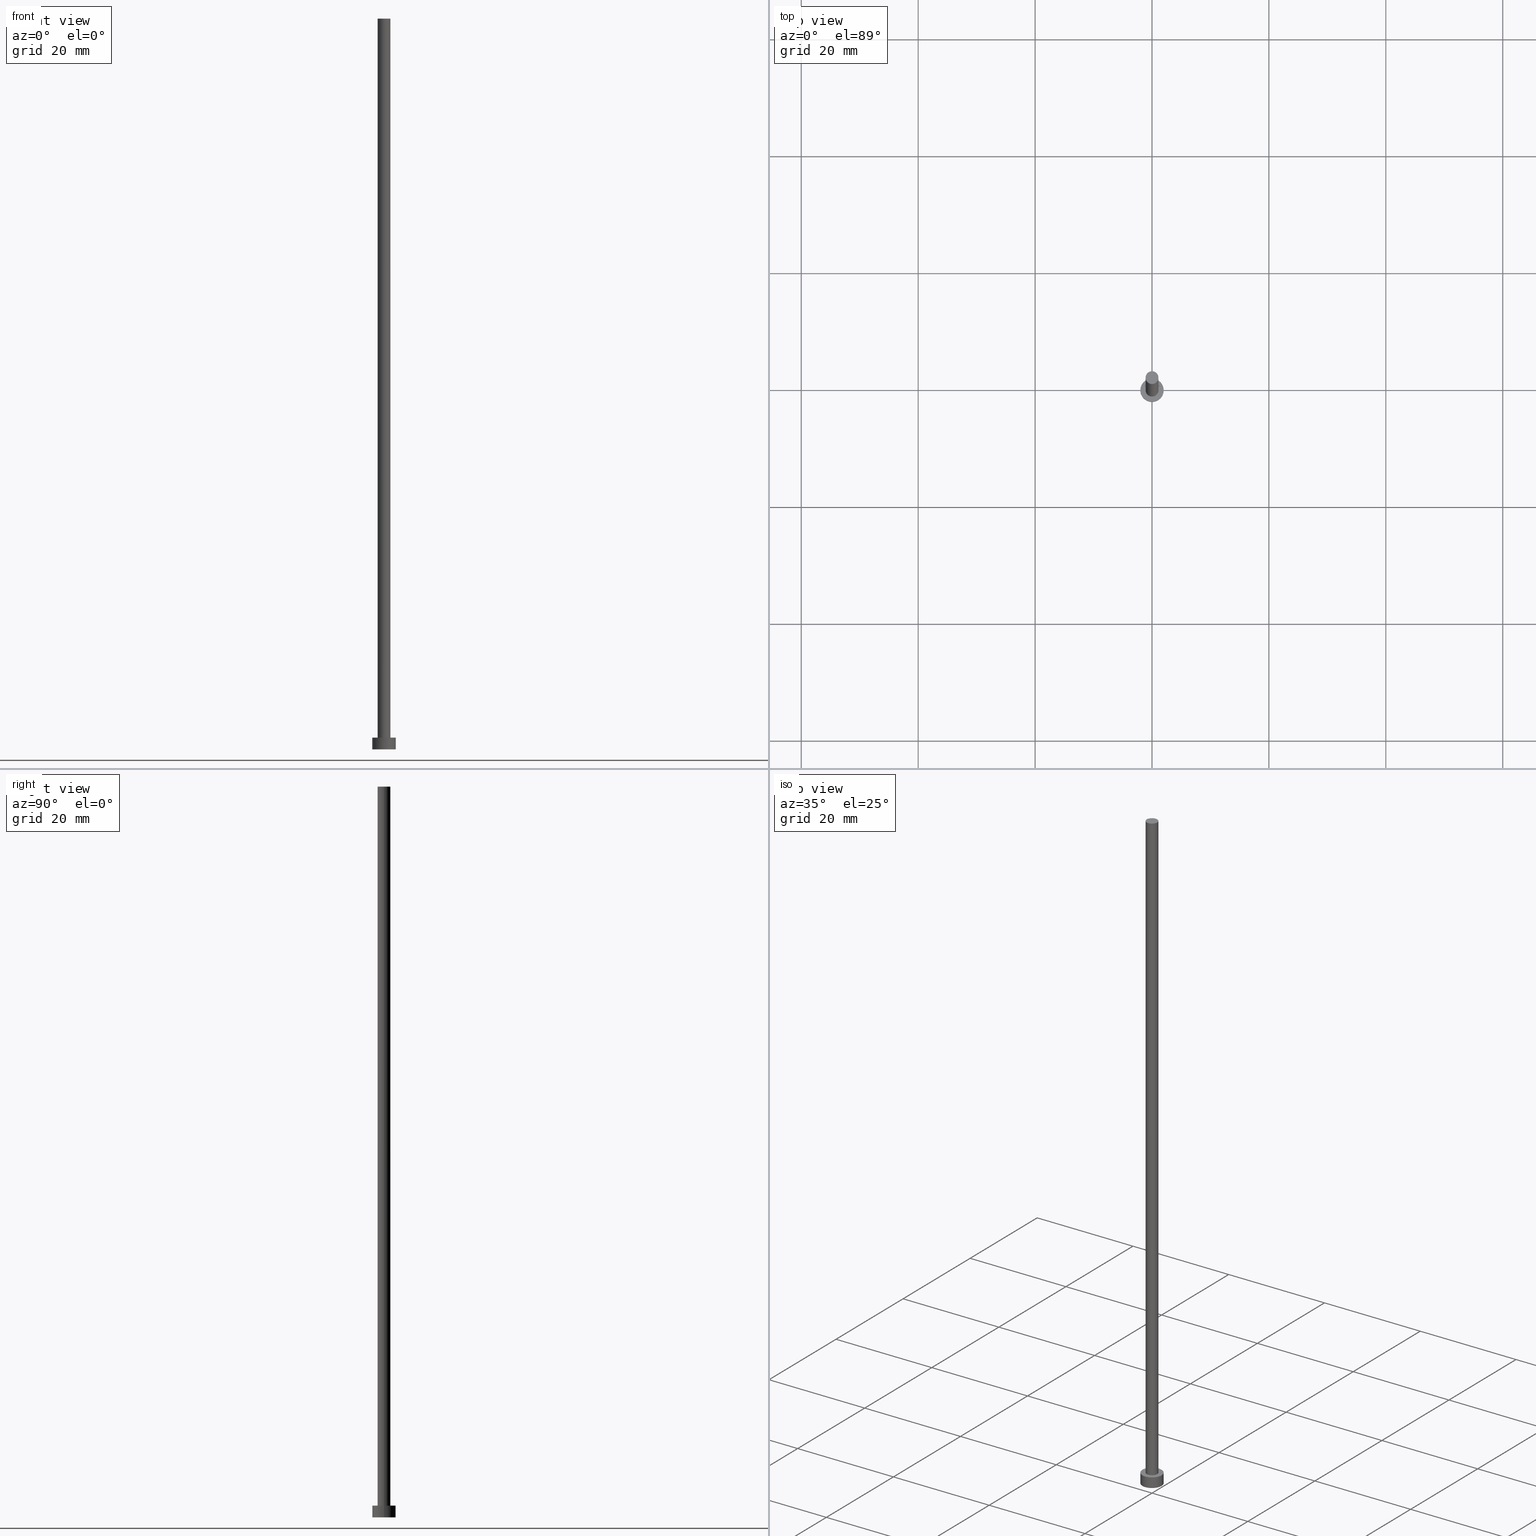
[diagram: canonical four-view strip — front | top / right | iso, engineering-drawing reading convention]
A machine part, canonical four-view strip (front | top / right | iso — engineering-drawing reading convention). The complete STEP part file that produces these views, byte-faithful:
ISO-10303-21;
HEADER;
FILE_DESCRIPTION (( 'STEP AP203' ),
    '1' );
FILE_NAME ('cc50.STEP',
    '2023-02-13T14:54:56',
    ( '' ),
    ( '' ),
    'SwSTEP 2.0',
    'SolidWorks 2019',
    '' );
FILE_SCHEMA (( 'CONFIG_CONTROL_DESIGN' ));
ENDSEC;

DATA;
#1 = DIRECTION ( 'NONE',  ( -0.000000000000000000, -0.000000000000000000, -1.000000000000000000 ) ) ;
#2 = DIRECTION ( 'NONE',  ( 0.000000000000000000, 0.000000000000000000, 1.000000000000000000 ) ) ;
#3 = DIRECTION ( 'NONE',  ( 0.000000000000000000, 0.000000000000000000, 1.000000000000000000 ) ) ;
#4 = ADVANCED_FACE ( 'NONE', ( #82 ), #80, .T. ) ;
#5 = DATE_AND_TIME ( #180, #24 ) ;
#6 = CARTESIAN_POINT ( 'NONE',  ( -2.000000000000000000, 0.000000000000000000, 0.000000000000000000 ) ) ;
#7 = EDGE_CURVE ( 'NONE', #54, #109, #189, .T. ) ;
#8 = AXIS2_PLACEMENT_3D ( 'NONE', #40, #63, #232 ) ;
#9 = APPLICATION_CONTEXT ( 'configuration controlled 3d designs of mechanical parts and assemblies' ) ;
#10 = ORIENTED_EDGE ( 'NONE', *, *, #123, .T. ) ;
#11 = DATE_AND_TIME ( #144, #200 ) ;
#12 = ORIENTED_EDGE ( 'NONE', *, *, #192, .F. ) ;
#13 = PERSON_AND_ORGANIZATION_ROLE ( 'classification_officer' ) ;
#14 = ORIENTED_EDGE ( 'NONE', *, *, #18, .F. ) ;
#15 = CC_DESIGN_SECURITY_CLASSIFICATION ( #204, ( #253 ) ) ;
#16 = ORIENTED_EDGE ( 'NONE', *, *, #44, .T. ) ;
#17 = FACE_OUTER_BOUND ( 'NONE', #112, .T. ) ;
#18 = EDGE_CURVE ( 'NONE', #209, #190, #95, .T. ) ;
#19 = CARTESIAN_POINT ( 'NONE',  ( 2.000000000000000000, 2.449293598294706414E-16, 2.000000000000000000 ) ) ;
#20 = CARTESIAN_POINT ( 'NONE',  ( -1.100000000000000089, 0.000000000000000000, 125.0000000000000000 ) ) ;
#21 = CARTESIAN_POINT ( 'NONE',  ( -2.000000000000000000, 0.000000000000000000, 2.000000000000000000 ) ) ;
#22 = DIRECTION ( 'NONE',  ( 1.000000000000000000, 0.000000000000000000, 0.000000000000000000 ) ) ;
#23 = PERSON_AND_ORGANIZATION ( #129, #225 ) ;
#24 = LOCAL_TIME ( 15, 54, 56.00000000000000000, #100 ) ;
#25 = APPROVAL_ROLE ( '' ) ;
#26 = DESIGN_CONTEXT ( 'detailed design', #9, 'design' ) ;
#27 = DIRECTION ( 'NONE',  ( 1.000000000000000000, 0.000000000000000000, -0.000000000000000000 ) ) ;
#28 =( NAMED_UNIT ( * ) SI_UNIT ( $, .STERADIAN. ) SOLID_ANGLE_UNIT ( ) );
#29 = PERSON_AND_ORGANIZATION ( #129, #225 ) ;
#30 = EDGE_CURVE ( 'NONE', #171, #136, #178, .T. ) ;
#31 = ORIENTED_EDGE ( 'NONE', *, *, #7, .F. ) ;
#32 = EDGE_LOOP ( 'NONE', ( #74, #89 ) ) ;
#33 = UNCERTAINTY_MEASURE_WITH_UNIT (LENGTH_MEASURE( 1.000000000000000082E-05 ), #147, 'distance_accuracy_value', 'NONE');
#34 = ORIENTED_EDGE ( 'NONE', *, *, #30, .T. ) ;
#35 = EDGE_CURVE ( 'NONE', #58, #252, #233, .T. ) ;
#36 = ORIENTED_EDGE ( 'NONE', *, *, #30, .F. ) ;
#37 = ORIENTED_EDGE ( 'NONE', *, *, #117, .F. ) ;
#38 = CC_DESIGN_APPROVAL ( #84, ( #253 ) ) ;
#39 = CC_DESIGN_PERSON_AND_ORGANIZATION_ASSIGNMENT ( #23, #126, ( #231 ) ) ;
#40 = CARTESIAN_POINT ( 'NONE',  ( 0.000000000000000000, 0.000000000000000000, 125.0000000000000000 ) ) ;
#41 = CARTESIAN_POINT ( 'NONE',  ( 0.000000000000000000, 0.000000000000000000, 2.000000000000000000 ) ) ;
#42 = DIRECTION ( 'NONE',  ( 0.000000000000000000, 0.000000000000000000, 1.000000000000000000 ) ) ;
#43 = DIRECTION ( 'NONE',  ( 1.000000000000000000, 0.000000000000000000, 0.000000000000000000 ) ) ;
#44 = EDGE_CURVE ( 'NONE', #252, #58, #220, .T. ) ;
#45 = DIRECTION ( 'NONE',  ( 1.000000000000000000, 0.000000000000000000, 0.000000000000000000 ) ) ;
#46 = DATE_AND_TIME ( #47, #64 ) ;
#47 = CALENDAR_DATE ( 2023, 13, 2 ) ;
#48 = AXIS2_PLACEMENT_3D ( 'NONE', #246, #50, #164 ) ;
#49 = APPLICATION_PROTOCOL_DEFINITION ( 'international standard', 'config_control_design', 1994, #223 ) ;
#50 = DIRECTION ( 'NONE',  ( -0.000000000000000000, -0.000000000000000000, -1.000000000000000000 ) ) ;
#51 = CARTESIAN_POINT ( 'NONE',  ( 0.000000000000000000, 0.000000000000000000, 2.000000000000000000 ) ) ;
#52 = APPROVAL_PERSON_ORGANIZATION ( #102, #212, #242 ) ;
#53 = PERSON_AND_ORGANIZATION_ROLE ( 'design_supplier' ) ;
#54 = VERTEX_POINT ( 'NONE', #193 ) ;
#55 = VECTOR ( 'NONE', #1, 1000.000000000000000 ) ;
#56 = ORIENTED_EDGE ( 'NONE', *, *, #163, .F. ) ;
#57 = CIRCLE ( 'NONE', #217, 2.000000000000000000 ) ;
#58 = VERTEX_POINT ( 'NONE', #60 ) ;
#59 = LINE ( 'NONE', #20, #55 ) ;
#60 = CARTESIAN_POINT ( 'NONE',  ( 2.000000000000000000, 2.449293598294706414E-16, 0.000000000000000000 ) ) ;
#61 = DIRECTION ( 'NONE',  ( 0.000000000000000000, 0.000000000000000000, 1.000000000000000000 ) ) ;
#62 = CARTESIAN_POINT ( 'NONE',  ( 1.100000000000000089, 1.347111479062088503E-16, 125.0000000000000000 ) ) ;
#63 = DIRECTION ( 'NONE',  ( -0.000000000000000000, -0.000000000000000000, -1.000000000000000000 ) ) ;
#64 = LOCAL_TIME ( 15, 54, 56.00000000000000000, #182 ) ;
#65 = FACE_OUTER_BOUND ( 'NONE', #153, .T. ) ;
#66 = APPROVAL_STATUS ( 'not_yet_approved' ) ;
#67 =( GEOMETRIC_REPRESENTATION_CONTEXT ( 3 ) GLOBAL_UNCERTAINTY_ASSIGNED_CONTEXT ( ( #33 ) ) GLOBAL_UNIT_ASSIGNED_CONTEXT ( ( #147, #243, #28 ) ) REPRESENTATION_CONTEXT ( 'NONE', 'WORKASPACE' ) );
#68 = DIRECTION ( 'NONE',  ( 0.000000000000000000, 0.000000000000000000, 1.000000000000000000 ) ) ;
#69 = ADVANCED_FACE ( 'NONE', ( #121 ), #93, .T. ) ;
#70 = ORIENTED_EDGE ( 'NONE', *, *, #79, .T. ) ;
#71 = EDGE_CURVE ( 'NONE', #209, #54, #59, .T. ) ;
#72 = COORDINATED_UNIVERSAL_TIME_OFFSET ( 1, 0, .AHEAD. ) ;
#73 = DATE_TIME_ROLE ( 'classification_date' ) ;
#74 = ORIENTED_EDGE ( 'NONE', *, *, #44, .F. ) ;
#75 = EDGE_CURVE ( 'NONE', #190, #209, #194, .T. ) ;
#76 = CARTESIAN_POINT ( 'NONE',  ( 0.000000000000000000, 0.000000000000000000, 2.000000000000000000 ) ) ;
#77 = AXIS2_PLACEMENT_3D ( 'NONE', #87, #167, #128 ) ;
#78 = DIRECTION ( 'NONE',  ( 1.000000000000000000, 0.000000000000000000, 0.000000000000000000 ) ) ;
#79 = EDGE_CURVE ( 'NONE', #109, #54, #86, .T. ) ;
#80 = CYLINDRICAL_SURFACE ( 'NONE', #8, 1.100000000000000089 ) ;
#81 = MANIFOLD_SOLID_BREP ( 'P�idat vysunut�m3', #151 ) ;
#82 = FACE_OUTER_BOUND ( 'NONE', #211, .T. ) ;
#83 = DIRECTION ( 'NONE',  ( 1.000000000000000000, 0.000000000000000000, -0.000000000000000000 ) ) ;
#84 = APPROVAL ( #66, 'NEUR�EN�' ) ;
#85 = PERSON_AND_ORGANIZATION ( #129, #225 ) ;
#86 = CIRCLE ( 'NONE', #226, 1.100000000000000089 ) ;
#87 = CARTESIAN_POINT ( 'NONE',  ( 0.000000000000000000, 0.000000000000000000, 2.000000000000000000 ) ) ;
#88 = CC_DESIGN_DATE_AND_TIME_ASSIGNMENT ( #5, #201, ( #231 ) ) ;
#89 = ORIENTED_EDGE ( 'NONE', *, *, #35, .F. ) ;
#90 = PERSON_AND_ORGANIZATION ( #129, #225 ) ;
#91 = ORIENTED_EDGE ( 'NONE', *, *, #163, .T. ) ;
#92 = ORIENTED_EDGE ( 'NONE', *, *, #192, .T. ) ;
#93 = PLANE ( 'NONE',  #165 ) ;
#94 = CARTESIAN_POINT ( 'NONE',  ( 0.000000000000000000, 0.000000000000000000, 125.0000000000000000 ) ) ;
#95 = CIRCLE ( 'NONE', #148, 1.100000000000000089 ) ;
#96 = CARTESIAN_POINT ( 'NONE',  ( 0.000000000000000000, 0.000000000000000000, 2.000000000000000000 ) ) ;
#97 = FACE_OUTER_BOUND ( 'NONE', #32, .T. ) ;
#98 = DIRECTION ( 'NONE',  ( 0.000000000000000000, 0.000000000000000000, 1.000000000000000000 ) ) ;
#99 = CC_DESIGN_APPROVAL ( #155, ( #204 ) ) ;
#100 = COORDINATED_UNIVERSAL_TIME_OFFSET ( 1, 0, .AHEAD. ) ;
#101 = COORDINATED_UNIVERSAL_TIME_OFFSET ( 1, 0, .AHEAD. ) ;
#102 = PERSON_AND_ORGANIZATION ( #129, #225 ) ;
#103 = AXIS2_PLACEMENT_3D ( 'NONE', #94, #42, #142 ) ;
#104 = DIRECTION ( 'NONE',  ( 0.000000000000000000, 0.000000000000000000, 1.000000000000000000 ) ) ;
#105 = PERSON_AND_ORGANIZATION_ROLE ( 'design_owner' ) ;
#106 = PRODUCT ( 'cc50', 'cc50', '', ( #224 ) ) ;
#107 = PRODUCT_RELATED_PRODUCT_CATEGORY ( 'detail', '', ( #106 ) ) ;
#108 = PERSON_AND_ORGANIZATION ( #129, #225 ) ;
#109 = VERTEX_POINT ( 'NONE', #122 ) ;
#110 = APPROVAL_PERSON_ORGANIZATION ( #85, #84, #25 ) ;
#111 = DATE_AND_TIME ( #251, #244 ) ;
#112 = EDGE_LOOP ( 'NONE', ( #36, #91, #177, #184 ) ) ;
#113 = ORIENTED_EDGE ( 'NONE', *, *, #71, .F. ) ;
#114 = VECTOR ( 'NONE', #115, 1000.000000000000000 ) ;
#115 = DIRECTION ( 'NONE',  ( -0.000000000000000000, -0.000000000000000000, -1.000000000000000000 ) ) ;
#116 = CARTESIAN_POINT ( 'NONE',  ( 2.000000000000000000, 2.449293598294706414E-16, 2.000000000000000000 ) ) ;
#117 = EDGE_CURVE ( 'NONE', #190, #109, #174, .T. ) ;
#118 = DIRECTION ( 'NONE',  ( -1.000000000000000000, 0.000000000000000000, 0.000000000000000000 ) ) ;
#119 = VECTOR ( 'NONE', #216, 1000.000000000000000 ) ;
#120 = VECTOR ( 'NONE', #156, 1000.000000000000000 ) ;
#121 = FACE_OUTER_BOUND ( 'NONE', #168, .T. ) ;
#122 = CARTESIAN_POINT ( 'NONE',  ( 1.100000000000000089, 1.347111479062088503E-16, 2.000000000000000000 ) ) ;
#123 = EDGE_CURVE ( 'NONE', #136, #252, #159, .T. ) ;
#124 = APPROVAL_DATE_TIME ( #46, #212 ) ;
#125 = AXIS2_PLACEMENT_3D ( 'NONE', #237, #239, #176 ) ;
#126 = PERSON_AND_ORGANIZATION_ROLE ( 'creator' ) ;
#127 = CARTESIAN_POINT ( 'NONE',  ( -1.100000000000000089, 0.000000000000000000, 125.0000000000000000 ) ) ;
#128 = DIRECTION ( 'NONE',  ( -1.000000000000000000, 0.000000000000000000, 0.000000000000000000 ) ) ;
#129 = PERSON ( 'NEUR�EN�', 'NEUR�EN�', 'NEUR�EN�', ('NEUR�EN�'), ('NEUR�EN�'), ('NEUR�EN�') ) ;
#130 = APPROVAL_PERSON_ORGANIZATION ( #108, #155, #185 ) ;
#131 = SECURITY_CLASSIFICATION_LEVEL ( 'unclassified' ) ;
#132 = EDGE_LOOP ( 'NONE', ( #37, #14, #169, #229 ) ) ;
#133 = ORIENTED_EDGE ( 'NONE', *, *, #117, .T. ) ;
#134 = CALENDAR_DATE ( 2023, 13, 2 ) ;
#135 = SHAPE_DEFINITION_REPRESENTATION ( #173, #166 ) ;
#136 = VERTEX_POINT ( 'NONE', #214 ) ;
#137 = COORDINATED_UNIVERSAL_TIME_OFFSET ( 1, 0, .AHEAD. ) ;
#138 = DIRECTION ( 'NONE',  ( 0.000000000000000000, 0.000000000000000000, 1.000000000000000000 ) ) ;
#139 = CARTESIAN_POINT ( 'NONE',  ( 0.000000000000000000, 0.000000000000000000, 125.0000000000000000 ) ) ;
#140 = DIRECTION ( 'NONE',  ( 0.000000000000000000, 0.000000000000000000, 1.000000000000000000 ) ) ;
#141 = DIRECTION ( 'NONE',  ( 0.000000000000000000, 0.000000000000000000, 1.000000000000000000 ) ) ;
#142 = DIRECTION ( 'NONE',  ( 1.000000000000000000, 0.000000000000000000, 0.000000000000000000 ) ) ;
#143 = ADVANCED_FACE ( 'NONE', ( #97 ), #213, .F. ) ;
#144 = CALENDAR_DATE ( 2023, 13, 2 ) ;
#145 = AXIS2_PLACEMENT_3D ( 'NONE', #179, #234, #158 ) ;
#146 = CARTESIAN_POINT ( 'NONE',  ( 0.000000000000000000, 0.000000000000000000, 0.000000000000000000 ) ) ;
#147 =( LENGTH_UNIT ( ) NAMED_UNIT ( * ) SI_UNIT ( .MILLI., .METRE. ) );
#148 = AXIS2_PLACEMENT_3D ( 'NONE', #255, #98, #160 ) ;
#149 = ADVANCED_FACE ( 'NONE', ( #17 ), #254, .T. ) ;
#150 = ORIENTED_EDGE ( 'NONE', *, *, #79, .F. ) ;
#151 = CLOSED_SHELL ( 'NONE', ( #4, #149, #236, #241, #143, #206, #69 ) ) ;
#152 = APPROVAL_DATE_TIME ( #111, #155 ) ;
#153 = EDGE_LOOP ( 'NONE', ( #56, #12, #10, #16 ) ) ;
#154 = CC_DESIGN_DATE_AND_TIME_ASSIGNMENT ( #170, #73, ( #204 ) ) ;
#155 = APPROVAL ( #230, 'NEUR�EN�' ) ;
#156 = DIRECTION ( 'NONE',  ( -0.000000000000000000, -0.000000000000000000, -1.000000000000000000 ) ) ;
#157 = AXIS2_PLACEMENT_3D ( 'NONE', #51, #68, #27 ) ;
#158 = DIRECTION ( 'NONE',  ( 1.000000000000000000, 0.000000000000000000, 0.000000000000000000 ) ) ;
#159 = LINE ( 'NONE', #21, #114 ) ;
#160 = DIRECTION ( 'NONE',  ( 1.000000000000000000, 0.000000000000000000, 0.000000000000000000 ) ) ;
#161 = CC_DESIGN_PERSON_AND_ORGANIZATION_ASSIGNMENT ( #29, #105, ( #106 ) ) ;
#162 = APPLICATION_PROTOCOL_DEFINITION ( 'international standard', 'config_control_design', 1994, #9 ) ;
#163 = EDGE_CURVE ( 'NONE', #171, #58, #195, .T. ) ;
#164 = DIRECTION ( 'NONE',  ( -1.000000000000000000, 0.000000000000000000, 0.000000000000000000 ) ) ;
#165 = AXIS2_PLACEMENT_3D ( 'NONE', #139, #3, #83 ) ;
#166 = ADVANCED_BREP_SHAPE_REPRESENTATION ( 'cc50', ( #81, #172 ), #67 ) ;
#167 = DIRECTION ( 'NONE',  ( -0.000000000000000000, -0.000000000000000000, -1.000000000000000000 ) ) ;
#168 = EDGE_LOOP ( 'NONE', ( #205, #197 ) ) ;
#169 = ORIENTED_EDGE ( 'NONE', *, *, #71, .T. ) ;
#170 = DATE_AND_TIME ( #134, #249 ) ;
#171 = VERTEX_POINT ( 'NONE', #19 ) ;
#172 = AXIS2_PLACEMENT_3D ( 'NONE', #146, #104, #222 ) ;
#173 = PRODUCT_DEFINITION_SHAPE ( 'NONE', 'NONE',  #231 ) ;
#174 = LINE ( 'NONE', #198, #119 ) ;
#175 = CARTESIAN_POINT ( 'NONE',  ( 0.000000000000000000, 0.000000000000000000, 2.000000000000000000 ) ) ;
#176 = DIRECTION ( 'NONE',  ( 1.000000000000000000, 0.000000000000000000, 0.000000000000000000 ) ) ;
#177 = ORIENTED_EDGE ( 'NONE', *, *, #35, .T. ) ;
#178 = CIRCLE ( 'NONE', #199, 2.000000000000000000 ) ;
#179 = CARTESIAN_POINT ( 'NONE',  ( 0.000000000000000000, 0.000000000000000000, 0.000000000000000000 ) ) ;
#180 = CALENDAR_DATE ( 2023, 13, 2 ) ;
#181 = FACE_OUTER_BOUND ( 'NONE', #210, .T. ) ;
#182 = COORDINATED_UNIVERSAL_TIME_OFFSET ( 1, 0, .AHEAD. ) ;
#183 = PLANE ( 'NONE',  #157 ) ;
#184 = ORIENTED_EDGE ( 'NONE', *, *, #123, .F. ) ;
#185 = APPROVAL_ROLE ( '' ) ;
#186 = ORIENTED_EDGE ( 'NONE', *, *, #75, .F. ) ;
#187 = CC_DESIGN_PERSON_AND_ORGANIZATION_ASSIGNMENT ( #227, #208, ( #253 ) ) ;
#188 = PERSON_AND_ORGANIZATION ( #129, #225 ) ;
#189 = CIRCLE ( 'NONE', #207, 1.100000000000000089 ) ;
#190 = VERTEX_POINT ( 'NONE', #62 ) ;
#191 = CARTESIAN_POINT ( 'NONE',  ( 0.000000000000000000, 0.000000000000000000, 0.000000000000000000 ) ) ;
#192 = EDGE_CURVE ( 'NONE', #136, #171, #57, .T. ) ;
#193 = CARTESIAN_POINT ( 'NONE',  ( -1.100000000000000089, 0.000000000000000000, 2.000000000000000000 ) ) ;
#194 = CIRCLE ( 'NONE', #103, 1.100000000000000089 ) ;
#195 = LINE ( 'NONE', #116, #120 ) ;
#196 = CC_DESIGN_PERSON_AND_ORGANIZATION_ASSIGNMENT ( #188, #13, ( #204 ) ) ;
#197 = ORIENTED_EDGE ( 'NONE', *, *, #75, .T. ) ;
#198 = CARTESIAN_POINT ( 'NONE',  ( 1.100000000000000089, 1.347111479062088503E-16, 125.0000000000000000 ) ) ;
#199 = AXIS2_PLACEMENT_3D ( 'NONE', #96, #2, #78 ) ;
#200 = LOCAL_TIME ( 15, 54, 56.00000000000000000, #101 ) ;
#201 = DATE_TIME_ROLE ( 'creation_date' ) ;
#202 = FACE_BOUND ( 'NONE', #250, .T. ) ;
#203 = CYLINDRICAL_SURFACE ( 'NONE', #77, 2.000000000000000000 ) ;
#204 = SECURITY_CLASSIFICATION ( '', '', #131 ) ;
#205 = ORIENTED_EDGE ( 'NONE', *, *, #18, .T. ) ;
#206 = ADVANCED_FACE ( 'NONE', ( #240 ), #245, .T. ) ;
#207 = AXIS2_PLACEMENT_3D ( 'NONE', #41, #61, #22 ) ;
#208 = PERSON_AND_ORGANIZATION_ROLE ( 'creator' ) ;
#209 = VERTEX_POINT ( 'NONE', #127 ) ;
#210 = EDGE_LOOP ( 'NONE', ( #92, #34 ) ) ;
#211 = EDGE_LOOP ( 'NONE', ( #186, #133, #70, #113 ) ) ;
#212 = APPROVAL ( #219, 'NEUR�EN�' ) ;
#213 = PLANE ( 'NONE',  #228 ) ;
#214 = CARTESIAN_POINT ( 'NONE',  ( -2.000000000000000000, 0.000000000000000000, 2.000000000000000000 ) ) ;
#215 = DIRECTION ( 'NONE',  ( -0.000000000000000000, -0.000000000000000000, -1.000000000000000000 ) ) ;
#216 = DIRECTION ( 'NONE',  ( -0.000000000000000000, -0.000000000000000000, -1.000000000000000000 ) ) ;
#217 = AXIS2_PLACEMENT_3D ( 'NONE', #175, #141, #43 ) ;
#218 = CARTESIAN_POINT ( 'NONE',  ( 0.000000000000000000, 0.000000000000000000, 2.000000000000000000 ) ) ;
#219 = APPROVAL_STATUS ( 'not_yet_approved' ) ;
#220 = CIRCLE ( 'NONE', #145, 2.000000000000000000 ) ;
#221 = CC_DESIGN_APPROVAL ( #212, ( #231 ) ) ;
#222 = DIRECTION ( 'NONE',  ( 1.000000000000000000, 0.000000000000000000, 0.000000000000000000 ) ) ;
#223 = APPLICATION_CONTEXT ( 'configuration controlled 3d designs of mechanical parts and assemblies' ) ;
#224 = MECHANICAL_CONTEXT ( 'NONE', #223, 'mechanical' ) ;
#225 = ORGANIZATION ( 'NEUR�EN�', 'NEUR�EN�', '' ) ;
#226 = AXIS2_PLACEMENT_3D ( 'NONE', #218, #138, #45 ) ;
#227 = PERSON_AND_ORGANIZATION ( #129, #225 ) ;
#228 = AXIS2_PLACEMENT_3D ( 'NONE', #191, #140, #238 ) ;
#229 = ORIENTED_EDGE ( 'NONE', *, *, #7, .T. ) ;
#230 = APPROVAL_STATUS ( 'not_yet_approved' ) ;
#231 = PRODUCT_DEFINITION ( 'NEZN�M�', '', #253, #26 ) ;
#232 = DIRECTION ( 'NONE',  ( -1.000000000000000000, 0.000000000000000000, 0.000000000000000000 ) ) ;
#233 = CIRCLE ( 'NONE', #125, 2.000000000000000000 ) ;
#234 = DIRECTION ( 'NONE',  ( 0.000000000000000000, 0.000000000000000000, 1.000000000000000000 ) ) ;
#235 = AXIS2_PLACEMENT_3D ( 'NONE', #76, #215, #118 ) ;
#236 = ADVANCED_FACE ( 'NONE', ( #65 ), #203, .T. ) ;
#237 = CARTESIAN_POINT ( 'NONE',  ( 0.000000000000000000, 0.000000000000000000, 0.000000000000000000 ) ) ;
#238 = DIRECTION ( 'NONE',  ( 1.000000000000000000, 0.000000000000000000, -0.000000000000000000 ) ) ;
#239 = DIRECTION ( 'NONE',  ( 0.000000000000000000, 0.000000000000000000, 1.000000000000000000 ) ) ;
#240 = FACE_OUTER_BOUND ( 'NONE', #132, .T. ) ;
#241 = ADVANCED_FACE ( 'NONE', ( #202, #181 ), #183, .T. ) ;
#242 = APPROVAL_ROLE ( '' ) ;
#243 =( NAMED_UNIT ( * ) PLANE_ANGLE_UNIT ( ) SI_UNIT ( $, .RADIAN. ) );
#244 = LOCAL_TIME ( 15, 54, 56.00000000000000000, #72 ) ;
#245 = CYLINDRICAL_SURFACE ( 'NONE', #48, 1.100000000000000089 ) ;
#246 = CARTESIAN_POINT ( 'NONE',  ( 0.000000000000000000, 0.000000000000000000, 125.0000000000000000 ) ) ;
#247 = APPROVAL_DATE_TIME ( #11, #84 ) ;
#248 = CC_DESIGN_PERSON_AND_ORGANIZATION_ASSIGNMENT ( #90, #53, ( #253 ) ) ;
#249 = LOCAL_TIME ( 15, 54, 56.00000000000000000, #137 ) ;
#250 = EDGE_LOOP ( 'NONE', ( #31, #150 ) ) ;
#251 = CALENDAR_DATE ( 2023, 13, 2 ) ;
#252 = VERTEX_POINT ( 'NONE', #6 ) ;
#253 = PRODUCT_DEFINITION_FORMATION_WITH_SPECIFIED_SOURCE ( 'LIBOVOLN�', '', #106, .NOT_KNOWN. ) ;
#254 = CYLINDRICAL_SURFACE ( 'NONE', #235, 2.000000000000000000 ) ;
#255 = CARTESIAN_POINT ( 'NONE',  ( 0.000000000000000000, 0.000000000000000000, 125.0000000000000000 ) ) ;
ENDSEC;
END-ISO-10303-21;
